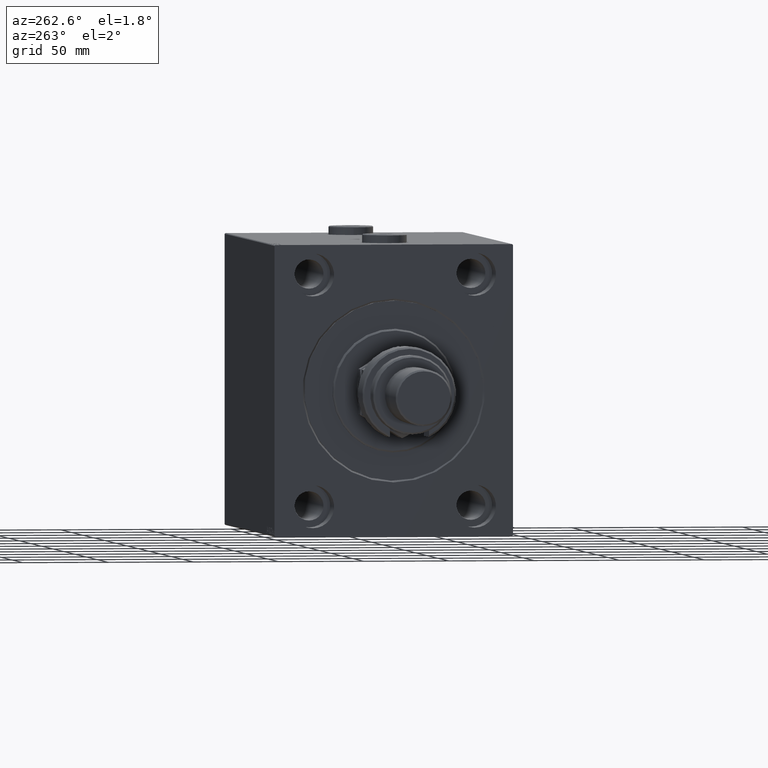
[diagram: clean part render]
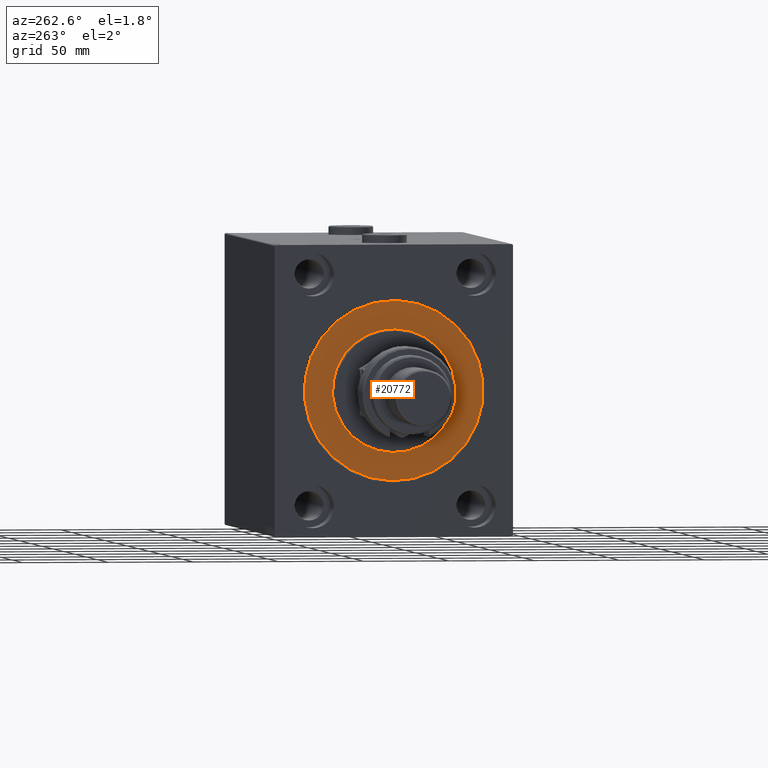
[diagram: same view with one face highlighted and labeled with its STEP entity id]
A machine part, auxiliary view. The second image highlights one B-rep face of the part: STEP entity #20772.
In plain terms, the highlighted planar face has unit normal (1, 0, -0).
Its self-contained STEP definition (entity closure, byte-faithful):
#595 = CIRCLE ( 'NONE', #2971, 36.00000000000000000 ) ;
#1123 = FACE_BOUND ( 'NONE', #44043, .T. ) ;
#1589 = CARTESIAN_POINT ( 'NONE',  ( 0.000000000000000000, 4.408728476930470856E-15, -36.00000000000000000 ) ) ;
#1744 = CARTESIAN_POINT ( 'NONE',  ( 0.000000000000000000, 0.000000000000000000, 0.000000000000000000 ) ) ;
#2971 = AXIS2_PLACEMENT_3D ( 'NONE', #21403, #38578, #6526 ) ;
#6526 = DIRECTION ( 'NONE',  ( 0.000000000000000000, 0.000000000000000000, -1.000000000000000000 ) ) ;
#7099 = ORIENTED_EDGE ( 'NONE', *, *, #31241, .F. ) ;
#7774 = ORIENTED_EDGE ( 'NONE', *, *, #13750, .F. ) ;
#10275 = CARTESIAN_POINT ( 'NONE',  ( 0.000000000000000000, 0.000000000000000000, -52.49999999999999289 ) ) ;
#12339 = DIRECTION ( 'NONE',  ( -1.000000000000000000, 0.000000000000000000, 0.000000000000000000 ) ) ;
#13750 = EDGE_CURVE ( 'NONE', #19241, #18200, #595, .T. ) ;
#15261 = PLANE ( 'NONE',  #30155 ) ;
#17026 = AXIS2_PLACEMENT_3D ( 'NONE', #39491, #32404, #42683 ) ;
#18200 = VERTEX_POINT ( 'NONE', #19808 ) ;
#19241 = VERTEX_POINT ( 'NONE', #1589 ) ;
#19703 = ORIENTED_EDGE ( 'NONE', *, *, #24111, .F. ) ;
#19808 = CARTESIAN_POINT ( 'NONE',  ( 0.000000000000000000, 0.000000000000000000, 36.00000000000000000 ) ) ;
#19953 = DIRECTION ( 'NONE',  ( -1.000000000000000000, 0.000000000000000000, 0.000000000000000000 ) ) ;
#20077 = ORIENTED_EDGE ( 'NONE', *, *, #25077, .F. ) ;
#20772 = ADVANCED_FACE ( 'NONE', ( #1123, #45528 ), #15261, .F. ) ;
#21063 = CIRCLE ( 'NONE', #39772, 52.49999999999999289 ) ;
#21403 = CARTESIAN_POINT ( 'NONE',  ( 0.000000000000000000, 0.000000000000000000, 0.000000000000000000 ) ) ;
#22875 = DIRECTION ( 'NONE',  ( 0.000000000000000000, 0.000000000000000000, 1.000000000000000000 ) ) ;
#24111 = EDGE_CURVE ( 'NONE', #46839, #29328, #28728, .T. ) ;
#24188 = DIRECTION ( 'NONE',  ( 0.000000000000000000, 0.000000000000000000, -1.000000000000000000 ) ) ;
#25077 = EDGE_CURVE ( 'NONE', #18200, #19241, #43586, .T. ) ;
#25629 = AXIS2_PLACEMENT_3D ( 'NONE', #1744, #42510, #24188 ) ;
#28728 = CIRCLE ( 'NONE', #17026, 52.49999999999999289 ) ;
#29328 = VERTEX_POINT ( 'NONE', #30542 ) ;
#30155 = AXIS2_PLACEMENT_3D ( 'NONE', #37478, #12339, #41616 ) ;
#30542 = CARTESIAN_POINT ( 'NONE',  ( 0.000000000000000000, 6.429395695523603167E-15, 52.49999999999999289 ) ) ;
#31241 = EDGE_CURVE ( 'NONE', #29328, #46839, #21063, .T. ) ;
#32404 = DIRECTION ( 'NONE',  ( -1.000000000000000000, 0.000000000000000000, 0.000000000000000000 ) ) ;
#37478 = CARTESIAN_POINT ( 'NONE',  ( 0.000000000000000000, 0.000000000000000000, 0.000000000000000000 ) ) ;
#38578 = DIRECTION ( 'NONE',  ( 1.000000000000000000, -0.000000000000000000, 0.000000000000000000 ) ) ;
#39491 = CARTESIAN_POINT ( 'NONE',  ( 0.000000000000000000, 0.000000000000000000, 0.000000000000000000 ) ) ;
#39772 = AXIS2_PLACEMENT_3D ( 'NONE', #45585, #19953, #22875 ) ;
#41616 = DIRECTION ( 'NONE',  ( 0.000000000000000000, 0.000000000000000000, 1.000000000000000000 ) ) ;
#41988 = EDGE_LOOP ( 'NONE', ( #19703, #7099 ) ) ;
#42510 = DIRECTION ( 'NONE',  ( 1.000000000000000000, -0.000000000000000000, 0.000000000000000000 ) ) ;
#42683 = DIRECTION ( 'NONE',  ( 0.000000000000000000, 0.000000000000000000, 1.000000000000000000 ) ) ;
#43586 = CIRCLE ( 'NONE', #25629, 36.00000000000000000 ) ;
#44043 = EDGE_LOOP ( 'NONE', ( #20077, #7774 ) ) ;
#45528 = FACE_OUTER_BOUND ( 'NONE', #41988, .T. ) ;
#45585 = CARTESIAN_POINT ( 'NONE',  ( 0.000000000000000000, 0.000000000000000000, 0.000000000000000000 ) ) ;
#46839 = VERTEX_POINT ( 'NONE', #10275 ) ;